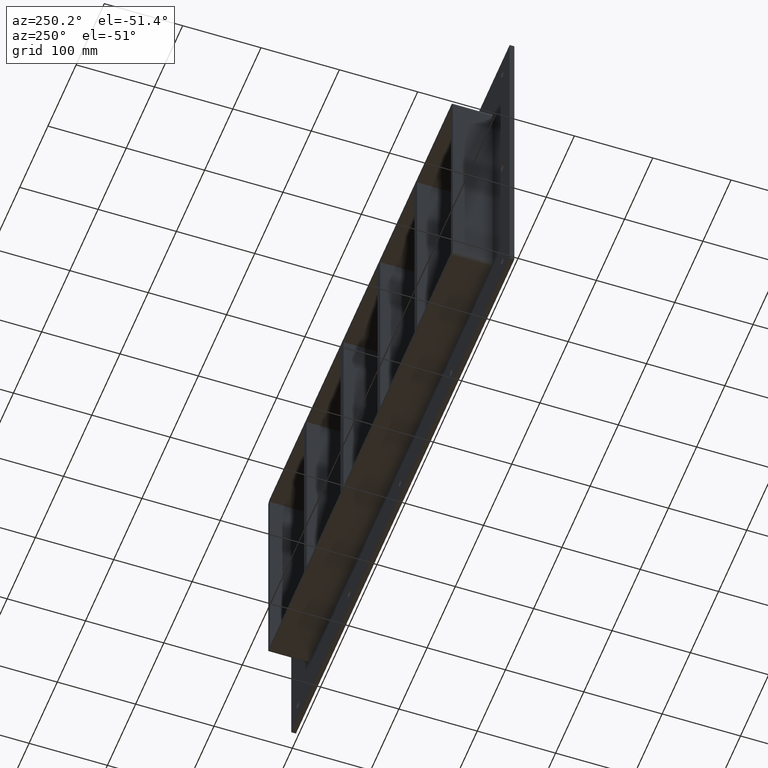
[diagram: clean part render]
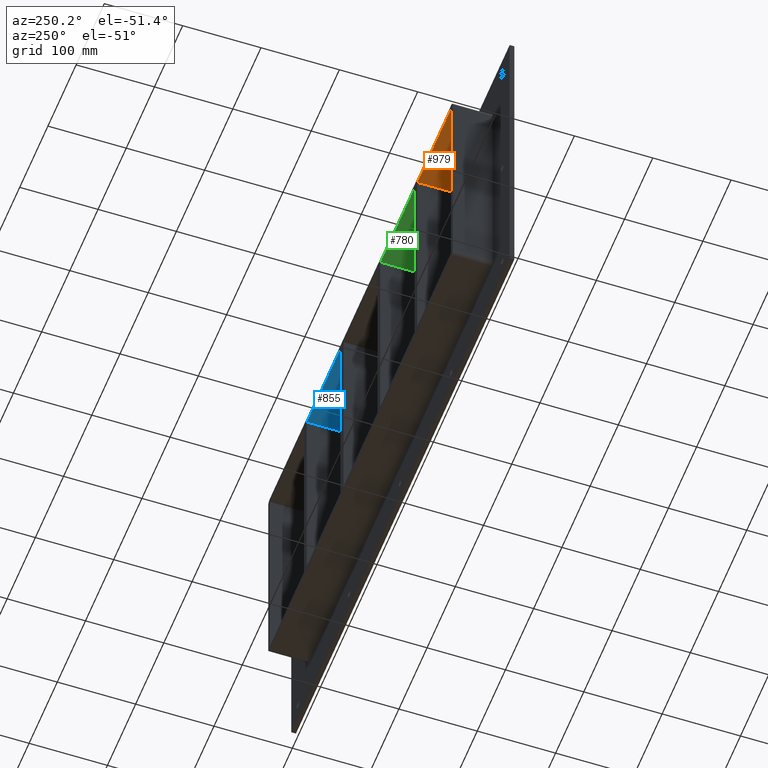
[diagram: same view with three faces highlighted in distinct colors, each labeled with its STEP entity id]
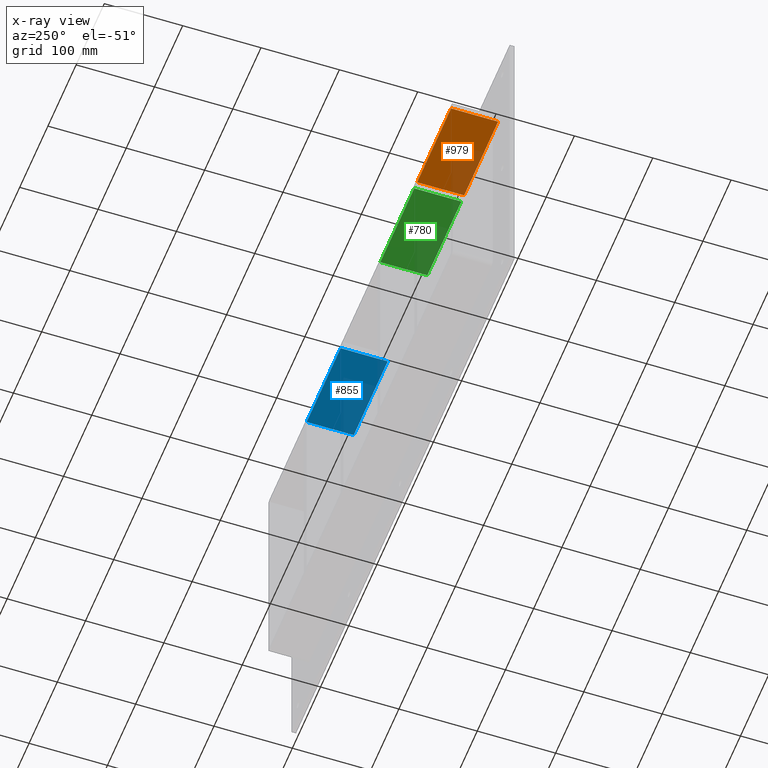
[diagram: x-ray of the same camera — body ghosted, the three highlighted faces saturated]
A machine part, auxiliary view with three faces highlighted in distinct colors.
The next image is the same camera in x-ray (body ghosted, the three faces saturated) — at least one of them is partly hidden behind the body in this view.
Their STEP definitions:

[orange] entity #979 — the highlighted planar face has unit normal (0, 0, 1).
#863=CARTESIAN_POINT('',(-200.7500000000021,-3.0,139.00000000000003));
#864=VERTEX_POINT('',#863);
#871=CARTESIAN_POINT('',(-200.7500000000021,57.0,139.00000000000003));
#872=VERTEX_POINT('',#871);
#873=CARTESIAN_POINT('',(-200.7500000000021,57.000000000000007,139.00000000000003));
#874=DIRECTION('',(0.0,-1.0,0.0));
#875=VECTOR('',#874,60.000000000000007);
#876=LINE('',#873,#875);
#877=EDGE_CURVE('',#872,#864,#876,.T.);
#949=CARTESIAN_POINT('',(-321.25000000000006,0.0,139.00000000000003));
#950=DIRECTION('',(0.0,0.0,1.0));
#951=DIRECTION('',(1.0,0.0,0.0));
#952=AXIS2_PLACEMENT_3D('',#949,#950,#951);
#953=PLANE('',#952);
#954=ORIENTED_EDGE('',*,*,#877,.T.);
#955=CARTESIAN_POINT('',(-321.25,-3.0,139.00000000000003));
#956=VERTEX_POINT('',#955);
#957=CARTESIAN_POINT('',(-321.25,-3.0,139.00000000000003));
#958=DIRECTION('',(1.0,0.0,0.0));
#959=VECTOR('',#958,120.49999999999793);
#960=LINE('',#957,#959);
#961=EDGE_CURVE('',#956,#864,#960,.T.);
#962=ORIENTED_EDGE('',*,*,#961,.F.);
#963=CARTESIAN_POINT('',(-321.25,57.0,139.00000000000003));
#964=VERTEX_POINT('',#963);
#965=CARTESIAN_POINT('',(-321.25000000000006,-3.0,139.00000000000003));
#966=DIRECTION('',(0.0,1.0,0.0));
#967=VECTOR('',#966,60.0);
#968=LINE('',#965,#967);
#969=EDGE_CURVE('',#956,#964,#968,.T.);
#970=ORIENTED_EDGE('',*,*,#969,.T.);
#971=CARTESIAN_POINT('',(-200.75000000000207,57.0,139.00000000000003));
#972=DIRECTION('',(-1.0,0.0,0.0));
#973=VECTOR('',#972,120.49999999999793);
#974=LINE('',#971,#973);
#975=EDGE_CURVE('',#872,#964,#974,.T.);
#976=ORIENTED_EDGE('',*,*,#975,.F.);
#977=EDGE_LOOP('',(#954,#962,#970,#976));
#978=FACE_OUTER_BOUND('',#977,.T.);
#979=ADVANCED_FACE('',(#978),#953,.F.);

[blue] entity #855 — the highlighted planar face has unit normal (0, 0, 1).
#411=CARTESIAN_POINT('',(190.74999999999795,-3.0,139.00000000000003));
#412=VERTEX_POINT('',#411);
#419=CARTESIAN_POINT('',(190.74999999999795,57.0,139.00000000000003));
#420=VERTEX_POINT('',#419);
#421=CARTESIAN_POINT('',(190.74999999999795,57.000000000000007,139.00000000000003));
#422=DIRECTION('',(0.0,-1.0,0.0));
#423=VECTOR('',#422,60.000000000000007);
#424=LINE('',#421,#423);
#425=EDGE_CURVE('',#420,#412,#424,.T.);
#529=CARTESIAN_POINT('',(70.249999999992738,-3.0,139.00000000000003));
#530=VERTEX_POINT('',#529);
#547=CARTESIAN_POINT('',(70.249999999992738,57.0,139.00000000000003));
#548=VERTEX_POINT('',#547);
#555=CARTESIAN_POINT('',(70.249999999992738,-3.0,139.00000000000003));
#556=DIRECTION('',(0.0,1.0,0.0));
#557=VECTOR('',#556,60.000000000000007);
#558=LINE('',#555,#557);
#559=EDGE_CURVE('',#530,#548,#558,.T.);
#834=CARTESIAN_POINT('',(-321.25000000000006,0.0,139.00000000000003));
#835=DIRECTION('',(0.0,0.0,1.0));
#836=DIRECTION('',(1.0,0.0,0.0));
#837=AXIS2_PLACEMENT_3D('',#834,#835,#836);
#838=PLANE('',#837);
#839=ORIENTED_EDGE('',*,*,#425,.T.);
#840=CARTESIAN_POINT('',(70.249999999992752,-3.0,139.00000000000003));
#841=DIRECTION('',(1.0,0.0,0.0));
#842=VECTOR('',#841,120.50000000000529);
#843=LINE('',#840,#842);
#844=EDGE_CURVE('',#530,#412,#843,.T.);
#845=ORIENTED_EDGE('',*,*,#844,.F.);
#846=ORIENTED_EDGE('',*,*,#559,.T.);
#847=CARTESIAN_POINT('',(190.74999999999804,57.0,139.00000000000003));
#848=DIRECTION('',(-1.0,0.0,0.0));
#849=VECTOR('',#848,120.50000000000529);
#850=LINE('',#847,#849);
#851=EDGE_CURVE('',#420,#548,#850,.T.);
#852=ORIENTED_EDGE('',*,*,#851,.F.);
#853=EDGE_LOOP('',(#839,#845,#846,#852));
#854=FACE_OUTER_BOUND('',#853,.T.);
#855=ADVANCED_FACE('',(#854),#838,.F.);

[green] entity #780 — the highlighted planar face has unit normal (0, 0, 1).
#571=CARTESIAN_POINT('',(-70.250000000002075,-3.0,139.00000000000003));
#572=VERTEX_POINT('',#571);
#579=CARTESIAN_POINT('',(-70.250000000002075,57.0,139.00000000000003));
#580=VERTEX_POINT('',#579);
#581=CARTESIAN_POINT('',(-70.250000000002103,57.000000000000007,139.00000000000003));
#582=DIRECTION('',(0.0,-1.0,0.0));
#583=VECTOR('',#582,60.000000000000007);
#584=LINE('',#581,#583);
#585=EDGE_CURVE('',#580,#572,#584,.T.);
#750=CARTESIAN_POINT('',(-321.25000000000006,0.0,139.00000000000003));
#751=DIRECTION('',(0.0,0.0,1.0));
#752=DIRECTION('',(1.0,0.0,0.0));
#753=AXIS2_PLACEMENT_3D('',#750,#751,#752);
#754=PLANE('',#753);
#755=ORIENTED_EDGE('',*,*,#585,.T.);
#756=CARTESIAN_POINT('',(-190.75000000000728,-3.0,139.00000000000003));
#757=VERTEX_POINT('',#756);
#758=CARTESIAN_POINT('',(-190.75000000000728,-3.0,139.00000000000003));
#759=DIRECTION('',(1.0,0.0,0.0));
#760=VECTOR('',#759,120.5000000000052);
#761=LINE('',#758,#760);
#762=EDGE_CURVE('',#757,#572,#761,.T.);
#763=ORIENTED_EDGE('',*,*,#762,.F.);
#764=CARTESIAN_POINT('',(-190.75000000000728,57.0,139.00000000000003));
#765=VERTEX_POINT('',#764);
#766=CARTESIAN_POINT('',(-190.75000000000728,-3.0,139.00000000000003));
#767=DIRECTION('',(0.0,1.0,0.0));
#768=VECTOR('',#767,60.000000000000007);
#769=LINE('',#766,#768);
#770=EDGE_CURVE('',#757,#765,#769,.T.);
#771=ORIENTED_EDGE('',*,*,#770,.T.);
#772=CARTESIAN_POINT('',(-70.250000000002075,57.0,139.00000000000003));
#773=DIRECTION('',(-1.0,0.0,0.0));
#774=VECTOR('',#773,120.5000000000052);
#775=LINE('',#772,#774);
#776=EDGE_CURVE('',#580,#765,#775,.T.);
#777=ORIENTED_EDGE('',*,*,#776,.F.);
#778=EDGE_LOOP('',(#755,#763,#771,#777));
#779=FACE_OUTER_BOUND('',#778,.T.);
#780=ADVANCED_FACE('',(#779),#754,.F.);